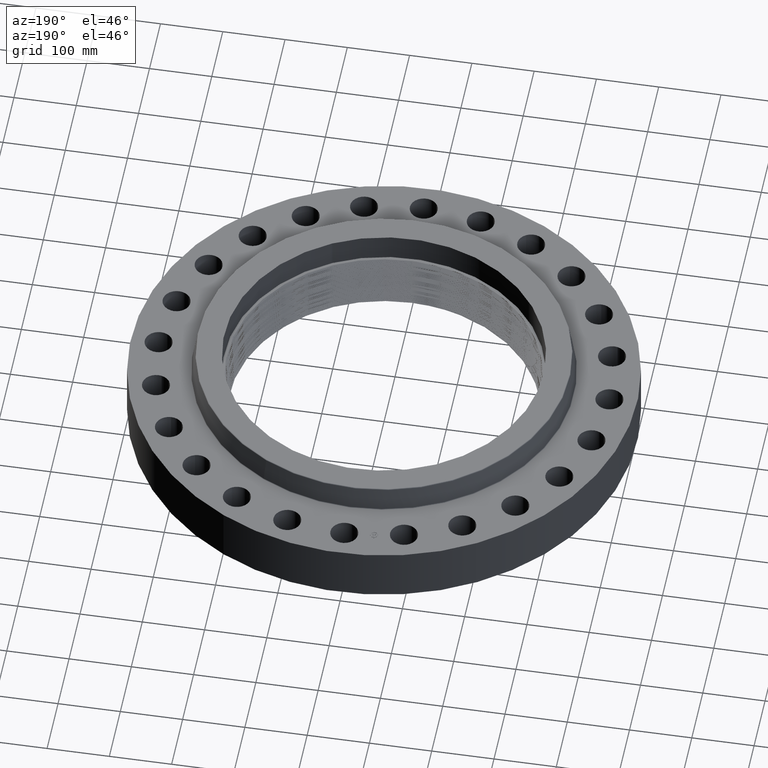
[diagram: clean part render]
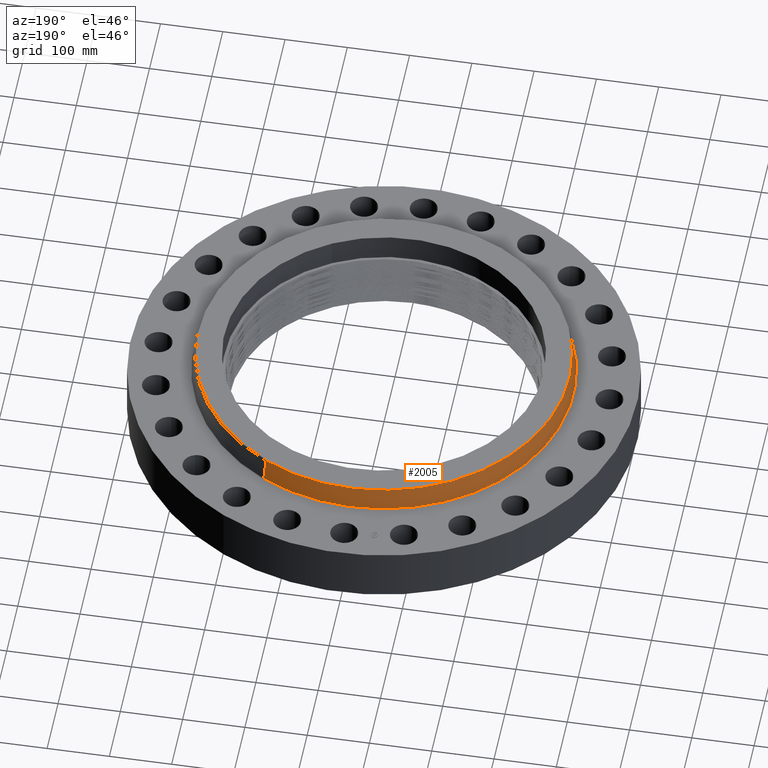
[diagram: same view with one face highlighted and labeled with its STEP entity id]
A machine part, auxiliary view. The second image highlights one B-rep face of the part: STEP entity #2005.
In plain terms, the highlighted conical surface has half-angle 10 deg.
Its self-contained STEP definition (entity closure, byte-faithful):
#1925=AXIS2_PLACEMENT_3D('Circle Axis2P3D',#1923,#1924,$) ;
#1978=AXIS2_PLACEMENT_3D('Cone Axis2P3D',#1975,#1976,#1977) ;
#1982=AXIS2_PLACEMENT_3D('Circle Axis2P3D',#1980,#1981,$) ;
#1923=CARTESIAN_POINT('Axis2P3D Location',(0.,0.,4.95041889068)) ;
#1927=CARTESIAN_POINT('Vertex',(-5.63049434842,-10.3065507719,4.95041889068)) ;
#1929=CARTESIAN_POINT('Vertex',(5.63049434842,10.3065507719,4.95041889068)) ;
#1975=CARTESIAN_POINT('Axis2P3D Location',(0.,0.,4.95041889068)) ;
#1980=CARTESIAN_POINT('Axis2P3D Location',(0.,0.,3.54958110935)) ;
#1984=CARTESIAN_POINT('Vertex',(-5.74891509159,-10.5233184883,3.54958110935)) ;
#1986=CARTESIAN_POINT('Vertex',(5.74891509159,10.5233184883,3.54958110935)) ;
#1989=CARTESIAN_POINT('Line Origine',(-5.68970472,-10.4149346301,4.25000000002)) ;
#1994=CARTESIAN_POINT('Line Origine',(5.68970472,10.4149346301,4.25000000002)) ;
#1924=DIRECTION('Axis2P3D Direction',(0.,0.,-0.0393700787402)) ;
#1976=DIRECTION('Axis2P3D Direction',(0.,0.,-0.0393700787402)) ;
#1977=DIRECTION('Axis2P3D XDirection',(0.0188750212049,0.0345504945626,0.)) ;
#1981=DIRECTION('Axis2P3D Direction',(0.,0.,-0.0393700787402)) ;
#1990=DIRECTION('Vector Direction',(-0.00327761303565,-0.00599963041829,-0.03877195878)) ;
#1995=DIRECTION('Vector Direction',(0.00327761303565,0.00599963041829,-0.03877195878)) ;
#1991=VECTOR('Line Direction',#1990,0.0393700787402) ;
#1996=VECTOR('Line Direction',#1995,0.0393700787402) ;
#2000=ORIENTED_EDGE('',*,*,#1988,.F.) ;
#2001=ORIENTED_EDGE('',*,*,#1993,.T.) ;
#2002=ORIENTED_EDGE('',*,*,#1931,.T.) ;
#2003=ORIENTED_EDGE('',*,*,#1998,.F.) ;
#2005=ADVANCED_FACE('PartBody',(#2004),#1979,.T.) ;
#1926=CIRCLE('generated circle',#1925,11.7442520163) ;
#1983=CIRCLE('generated circle',#1982,11.9912575127) ;
#1979=CONICAL_SURFACE('Cone',#1978,11.7442520163,0.174532925199) ;
#1931=EDGE_CURVE('',#1928,#1930,#1926,.T.) ;
#1988=EDGE_CURVE('',#1985,#1987,#1983,.T.) ;
#1993=EDGE_CURVE('',#1985,#1928,#1992,.F.) ;
#1998=EDGE_CURVE('',#1987,#1930,#1997,.F.) ;
#1999=EDGE_LOOP('',(#2000,#2001,#2002,#2003)) ;
#2004=FACE_OUTER_BOUND('',#1999,.T.) ;
#1992=LINE('Line',#1989,#1991) ;
#1997=LINE('Line',#1994,#1996) ;
#1928=VERTEX_POINT('',#1927) ;
#1930=VERTEX_POINT('',#1929) ;
#1985=VERTEX_POINT('',#1984) ;
#1987=VERTEX_POINT('',#1986) ;